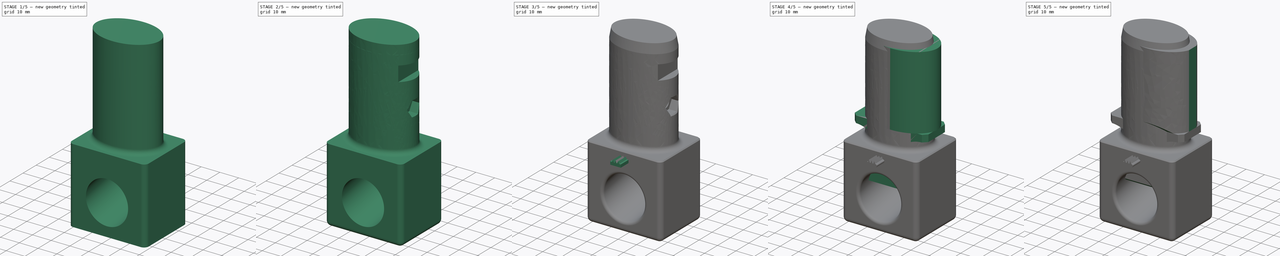
[diagram: build sequence overview — one tinted view per stage of 5, left to right]
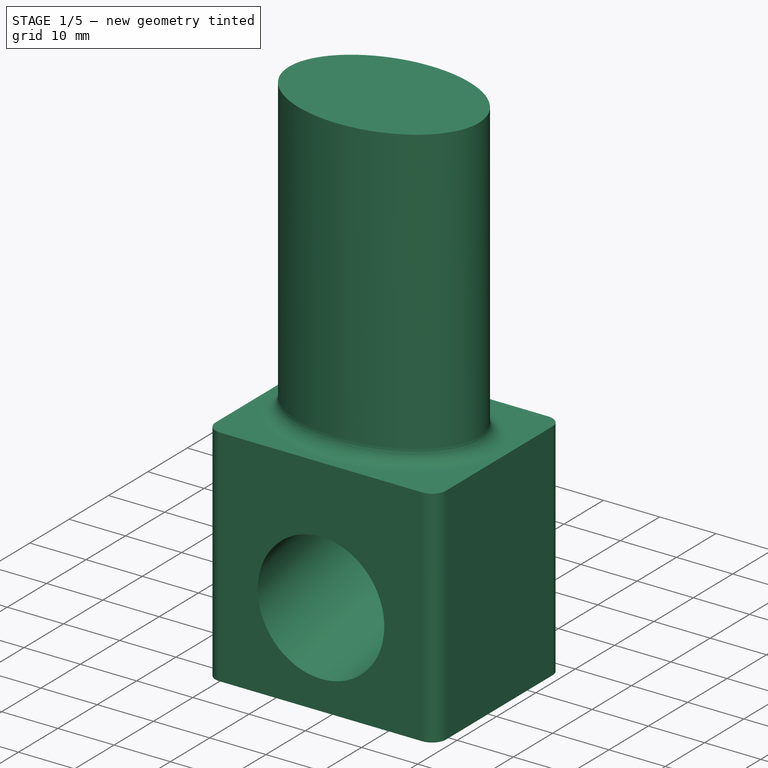
[diagram: stage 1 of 5 — iso view after this stage's code; geometry added in this stage tinted green]
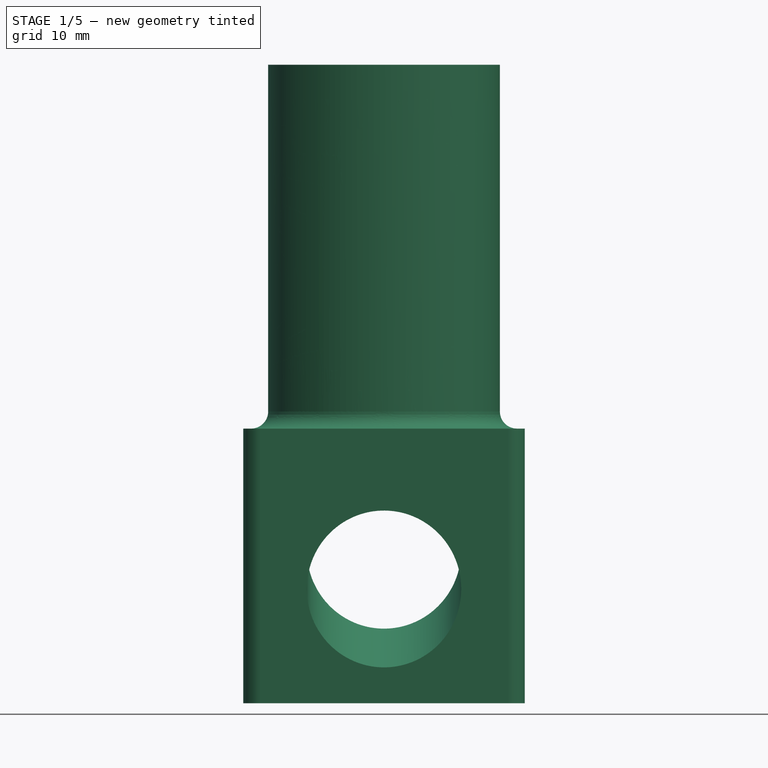
[diagram: stage 1 of 5 — front view after this stage's code; geometry added in this stage tinted green]
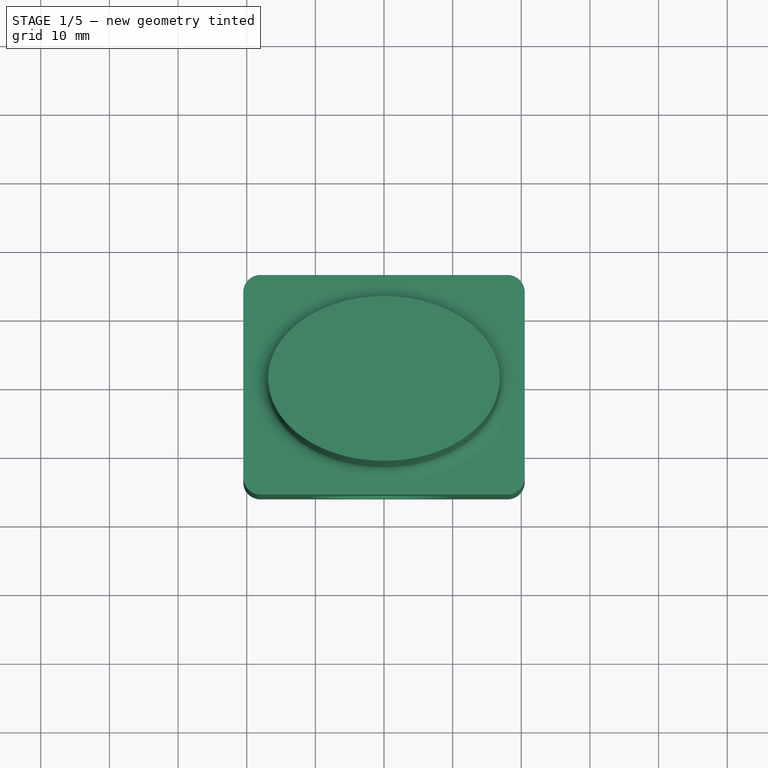
[diagram: stage 1 of 5 — top view after this stage's code; geometry added in this stage tinted green]
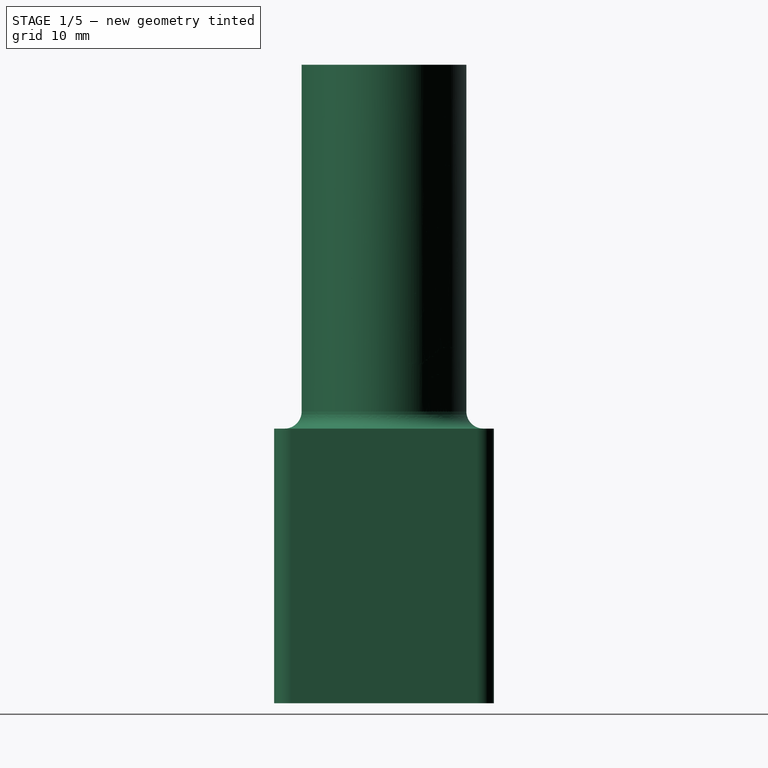
[diagram: stage 1 of 5 — right view after this stage's code; geometry added in this stage tinted green]
FCSTD DOCUMENT  (FreeCAD 2024.408R14555 (Git shallow))
Label: radiator mount
License: All rights reserved
LicenseURL: https://en.wikipedia.org/wiki/All_rights_reserved
objects: Sketcher::SketchObject×16, PartDesign::Pocket×9, PartDesign::Pad×6, PartDesign::Chamfer×4, PartDesign::Body×3, PartDesign::Fillet×3, PartDesign::Solid×2, PartDesign::Groove×1, PartDesign::Mirrored×1, PartDesign::Split×1
note: 111 computed .brp shape members not serialized (recipe doc carries the construction recipe); baked Part::Feature solids carry a one-line shape summary decoded from their .brp

FEATURE [PartDesign::Body] Body  label="mount 1"
  AutoGroupSolids = false
  ClaimAllChildren = false
  ExportMode = 0
  FixShape = 1
  Group = -> [Sketch,Pad,Sketch001,Groove,Sketch002,Pocket,Sketch003,Pad001,Sketch004,Pocket001,Sketch005,Pocket002,Sketch006,Pocket003,Mirrored,Chamfer]
  InvalidShape = false
  Origin = -> Origin
  Tip = -> Chamfer
  TreeRank = 12
  ValidateShape = false
  _ExportChildren = -> [Pad,Groove,Pocket,Pad001,Pocket001,Pocket002,Pocket003,Mirrored,Chamfer]
  _GroupVersion = 1
FEATURE [Sketcher::SketchObject] Sketch007
  ArcFitTolerance = 1e-06
  AttachmentSupport = -> [XY_Plane001]
  ExternalBSplineMaxDegree = 5
  ExternalBSplineTolerance = 0.0001
  FixShape = 1
  FullyConstrained = false
  InternalTolerance = 1e-06
  InvalidShape = false
  MakeInternals = false
  MapMode = 5
  Support = -> [XY_Plane001]
  TreeRank = 41
  ValidateShape = false
  sketch-geometry (5):
    g0: Ellipse CenterX=0 CenterY=0 CenterZ=0 NormalX=0 NormalY=0 NormalZ=1 MajorRadius=16.875 MinorRadius=12 AngleXU=-3.14159
    g1: LineSegment [constr] StartX=-16.875 StartY=-5.7e-15 StartZ=0 EndX=16.875 EndY=5.7e-15 EndZ=0
    g2: LineSegment [constr] StartX=4.1e-15 StartY=-12 StartZ=0 EndX=-4.1e-15 EndY=12 EndZ=0
    g3: GeomPoint [constr] X=-11.8645 Y=-4e-15 Z=0
    g4: GeomPoint [constr] X=11.8645 Y=4e-15 Z=0
  constraints (4):
    c: InternalAlignment(g1-g4 -> g0) x4
    c: Coincident(g0,g-1)
    c: DistanceX(g1,g1) = 33.75
    c: DistanceY(g2,g2) = 24
FEATURE [PartDesign::Pad] Pad002
  AddSubType = 0
  AlongSketchNormal = false
  AutoTaperInnerAngle = true
  CheckUpToFaceLimits = true
  ClaimChildren = false
  Direction = (0,0,1)
  Fit = 0
  FitJoin = 0
  FixShape = 1
  InnerFit = 0
  InnerFitJoin = 0
  InvalidShape = false
  Length = 58
  Length2 = 35
  Linearize = true
  NewSolid = false
  Profile = -> Sketch007
  ReferenceAxis = -> Sketch007 [N_Axis]
  Refine = true
  Suppress = false
  TaperInnerAngle = 0
  TaperInnerAngleRev = 0
  TreeRank = 42
  Type = 4
  ValidateShape = false
  _ProfileBasedVersion = 1
FEATURE [Sketcher::SketchObject] Sketch008
  ArcFitTolerance = 1e-06
  AttachmentOffset = pos=(0,0,0) rot=(1,0,0;0.174533rad)
  AttachmentSupport = -> [XZ_Plane001]
  ExternalBSplineMaxDegree = 5
  ExternalBSplineTolerance = 0.0001
  ExternalGeometry = -> [Pad002]
  FixShape = 1
  FullyConstrained = false
  InternalTolerance = 1e-06
  InvalidShape = false
  MakeInternals = false
  MapMode = 5
  Placement = pos=(0,0,0) rot=(1,0,0;1.74533rad)
  Support = -> [XZ_Plane001]
  TreeRank = 43
  ValidateShape = false
  sketch-geometry (2):
    g0: Circle CenterX=0 CenterY=-15.3022 CenterZ=0 NormalX=0 NormalY=0 NormalZ=1 AngleXU=0 Radius=11.25
    g1: LineSegment [constr] StartX=-0.0585861 StartY=-26.552 StartZ=0 EndX=-0.0585861 EndY=-36.552 EndZ=0
  constraints (6):
    c: PointOnObject(g0,g-2)
    c: Diameter(g0) = 22.5
    c: PointOnObject(g1,g0)
    c: Vertical(g1)
    c: PointOnObject(g1,g-3)
    c: DistanceY(g1,g1) = 10
FEATURE [Sketcher::SketchObject] Sketch012
  ArcFitTolerance = 1e-06
  AttachmentSupport = -> [Pad002]
  ExternalBSplineMaxDegree = 5
  ExternalBSplineTolerance = 0.0001
  ExternalGeometry = -> [Pad002]
  FixShape = 1
  FullyConstrained = true
  InternalTolerance = 1e-06
  InvalidShape = false
  MakeInternals = false
  MapMode = 5
  Placement = pos=(0,0,-35) rot=(1,0,0;3.14159rad)
  Support = -> [Pad002]
  TreeRank = 52
  ValidateShape = false
  sketch-geometry (10):
    g0: ArcOfCircle CenterX=18 CenterY=13.5 CenterZ=0 NormalX=0 NormalY=0 NormalZ=1 AngleXU=0 Radius=2.5 StartAngle=3e-16 EndAngle=1.5708
    g1: LineSegment StartX=20.5 StartY=13.5 StartZ=0 EndX=20.5 EndY=-13.5 EndZ=0
    g2: ArcOfCircle CenterX=18 CenterY=-13.5 CenterZ=0 NormalX=0 NormalY=0 NormalZ=1 AngleXU=0 Radius=2.5 StartAngle=4.71239 EndAngle=6.28319
    g3: LineSegment StartX=18 StartY=-16 StartZ=0 EndX=-18 EndY=-16 EndZ=0
    g4: ArcOfCircle CenterX=-18 CenterY=-13.5 CenterZ=0 NormalX=0 NormalY=0 NormalZ=1 AngleXU=0 Radius=2.5 StartAngle=3.14159 EndAngle=4.71239
    g5: LineSegment StartX=-20.5 StartY=-13.5 StartZ=0 EndX=-20.5 EndY=13.5 EndZ=0
    g6: ArcOfCircle CenterX=-18 CenterY=13.5 CenterZ=0 NormalX=0 NormalY=0 NormalZ=1 AngleXU=0 Radius=2.5 StartAngle=1.5708 EndAngle=3.14159
    g7: LineSegment StartX=-18 StartY=16 StartZ=0 EndX=18 EndY=16 EndZ=0
    g8: GeomPoint [constr] X=20.5 Y=16 Z=0
    g9: GeomPoint [constr] X=-20.5 Y=-16 Z=0
  constraints (23):
    c: Tangent(g0,g1) = 1.5708
    c: Tangent(g1,g2) = 1.5708
    c: Tangent(g2,g3) = 1.5708
    c: Tangent(g3,g4) = 1.5708
    c: Tangent(g4,g5) = 1.5708
    c: Tangent(g5,g6) = 1.5708
    c: Tangent(g6,g7) = 1.5708
    c: Tangent(g7,g0) = 1.5708
    c: Horizontal(g7)
    c: Vertical(g1)
    c: Vertical(g5)
    c: Equal(g0,g2)
    c: Equal(g2,g4)
    c: Equal(g4,g6)
    c: PointOnObject(g8,g1)
    c: PointOnObject(g8,g7)
    c: PointOnObject(g9,g3)
    c: PointOnObject(g9,g5)
    c: Radius(g6) = 2.5
    c: Horizontal(g3)
    c: Symmetric(g4,g0,g-3)
    c: DistanceY(g3,g6) = 32
    c: DistanceX(g4,g1) = 41
FEATURE [PartDesign::Pad] Pad003
  AddSubType = 0
  AlongSketchNormal = false
  AutoTaperInnerAngle = true
  BaseFeature = -> Pad002
  CheckUpToFaceLimits = true
  ClaimChildren = false
  Direction = (0,0,-1)
  Fit = 0
  FitJoin = 0
  FixShape = 1
  InnerFit = 0
  InnerFitJoin = 0
  InvalidShape = false
  Length = 40
  Length2 = 10
  Linearize = true
  NewSolid = false
  Profile = -> Sketch012
  ReferenceAxis = -> Sketch012 [N_Axis]
  Refine = true
  Reversed = true
  Suppress = false
  TaperInnerAngle = 0
  TaperInnerAngleRev = 0
  TreeRank = 53
  Type = 0
  ValidateShape = false
  _ProfileBasedVersion = 1
FEATURE [PartDesign::Pocket] Pocket004
  AddSubType = 1
  AlongSketchNormal = false
  AutoTaperInnerAngle = true
  BaseFeature = -> Pad003
  CheckUpToFaceLimits = true
  ClaimChildren = false
  Direction = (0,0.984808,0.173648)
  Fit = 0
  FitJoin = 0
  FixShape = 1
  InnerFit = 0
  InnerFitJoin = 0
  InvalidShape = false
  Length = 5
  Length2 = 10
  Linearize = true
  Midplane = true
  NewSolid = false
  Profile = -> Sketch008
  ReferenceAxis = -> Sketch008 [N_Axis]
  Refine = true
  Suppress = false
  TaperInnerAngle = 0
  TaperInnerAngleRev = 0
  TreeRank = 44
  Type = 1
  ValidateShape = false
  _ProfileBasedVersion = 1
  _Version = 1
FEATURE [PartDesign::Body] Body001  label="mount 2"
  AutoGroupSolids = false
  ClaimAllChildren = false
  ExportMode = 0
  FixShape = 1
  Group = -> [Sketch007,Pad002,Sketch008,Sketch012,Pad003,Pocket004,Fillet,Sketch009,Pocket005,Sketch010,Pocket006,Sketch011,Pocket007,Sketch013,Pocket008,Chamfer001,Fillet001,Fillet002,Chamfer003,Split,Split_i0,Split_i1]
  InvalidShape = false
  Origin = -> Origin001
  Tip = -> Split
  TreeRank = 40
  ValidateShape = false
  _ExportChildren = -> [Pad002,Pad003,Pocket004,Fillet,Pocket005,Pocket006,Pocket007,Pocket008,Chamfer001,Fillet001,Fillet002,Chamfer003,Split]
  _GroupVersion = 1
FEATURE [PartDesign::Split] Split
  BaseFeature = -> Chamfer003
  FixShape = 1
  Fragment = false
  InvalidShape = false
  Mode = 0
  NewSolid = false
  Solids = -> [Split_i0,Split_i1]
  Suppress = false
  Tolerance = 0
  Tools = -> [YZ_Plane001]
  TreeRank = 70
  ValidateShape = false
  _Version = 1
FEATURE [PartDesign::Solid] Split_i0
  Active = true
  FixShape = 1
  InvalidShape = false
  Parent = -> Split
  TreeRank = 71
  ValidateShape = false
FEATURE [PartDesign::Solid] Split_i1
  Active = true
  FixShape = 1
  InvalidShape = false
  Parent = -> Split
  TreeRank = 72
  ValidateShape = false
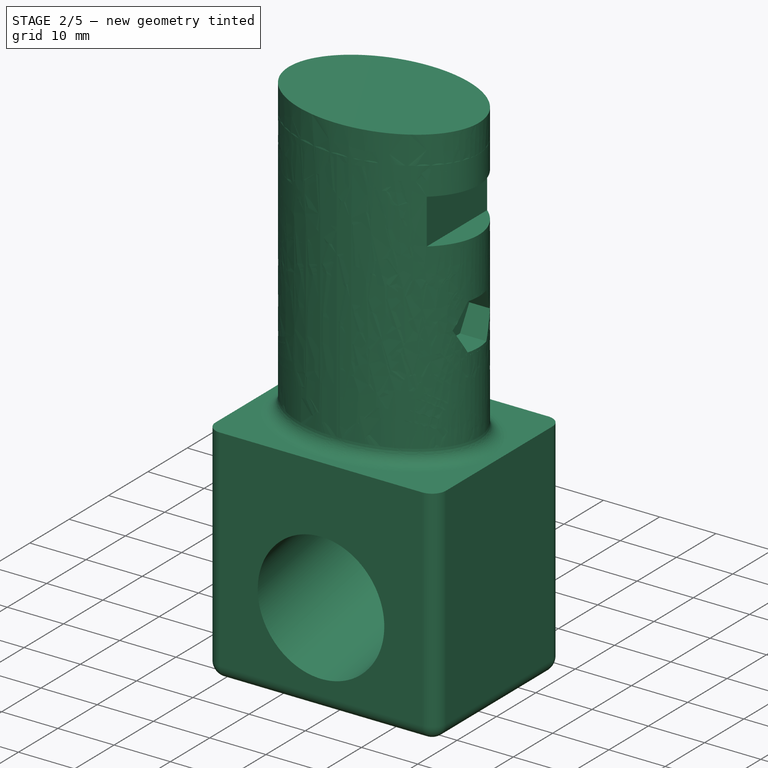
[diagram: stage 2 of 5 — iso view after this stage's code; geometry added in this stage tinted green]
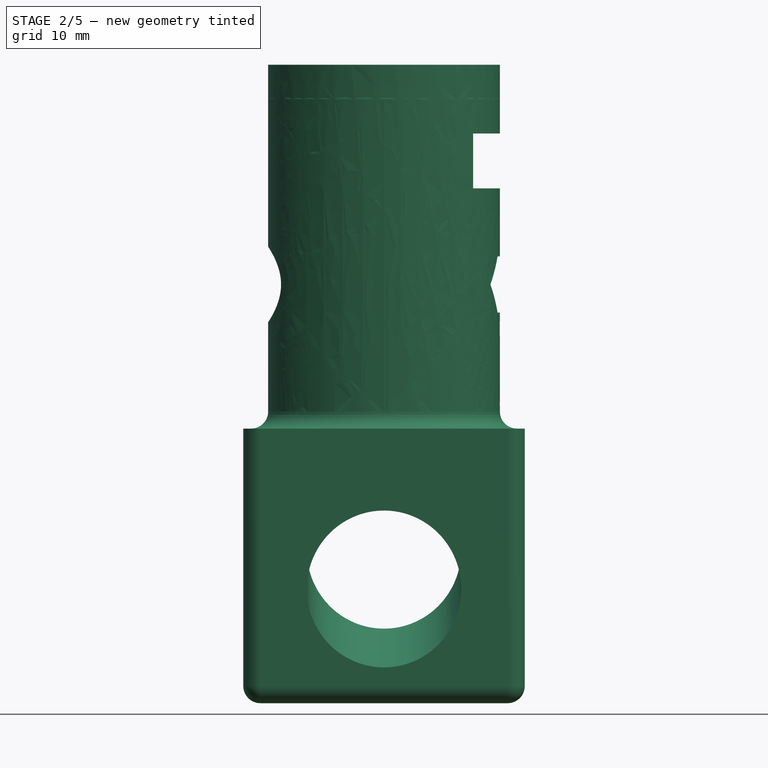
[diagram: stage 2 of 5 — front view after this stage's code; geometry added in this stage tinted green]
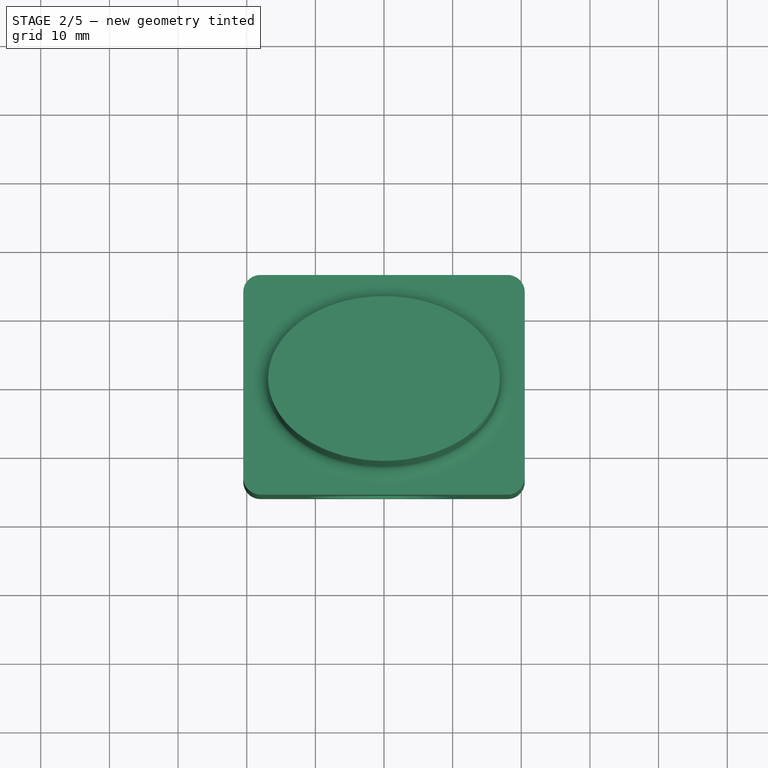
[diagram: stage 2 of 5 — top view after this stage's code; geometry added in this stage tinted green]
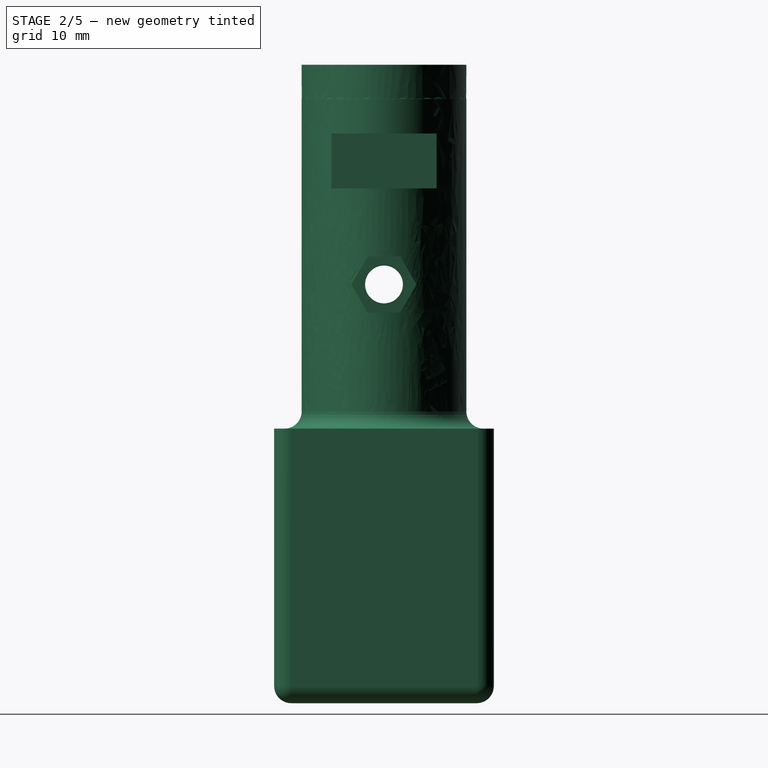
[diagram: stage 2 of 5 — right view after this stage's code; geometry added in this stage tinted green]
FEATURE [PartDesign::Fillet] Fillet
  AddSubType = 0
  Base = -> Pocket004 [Face4]
  BaseFeature = -> Pocket004
  FixShape = 1
  InvalidShape = false
  NewSolid = false
  Radius = 2.5
  Refine = true
  SupportTransform = false
  Suppress = false
  TreeRank = 45
  UseAllEdges = false
  ValidateShape = false
FEATURE [Sketcher::SketchObject] Sketch009
  ArcFitTolerance = 1e-06
  AttachmentSupport = -> [XZ_Plane001]
  ExternalBSplineMaxDegree = 5
  ExternalBSplineTolerance = 0.0001
  ExternalGeometry = -> [Fillet]
  FixShape = 1
  FullyConstrained = true
  InternalTolerance = 1e-06
  InvalidShape = false
  MakeInternals = false
  MapMode = 5
  Placement = pos=(0,0,0) rot=(1,0,0;1.5708rad)
  Support = -> [XZ_Plane001]
  TreeRank = 46
  ValidateShape = false
  sketch-geometry (4):
    g0: LineSegment StartX=12.975 StartY=48 StartZ=0 EndX=16.975 EndY=48 EndZ=0
    g1: LineSegment StartX=16.975 StartY=48 StartZ=0 EndX=16.975 EndY=40 EndZ=0
    g2: LineSegment StartX=16.975 StartY=40 StartZ=0 EndX=12.975 EndY=40 EndZ=0
    g3: LineSegment StartX=12.975 StartY=40 StartZ=0 EndX=12.975 EndY=48 EndZ=0
  constraints (12):
    c: Coincident(g0,g1)
    c: Coincident(g1,g2)
    c: Coincident(g2,g3)
    c: Coincident(g3,g0)
    c: Horizontal(g0)
    c: Horizontal(g2)
    c: Vertical(g1)
    c: Vertical(g3)
    c: DistanceY(g3,g3) = 8
    c: DistanceX(g0,g0) = 4
    c: DistanceY(g0,g-3) = 10
    c: DistanceX(g-3,g0) = 0.1
FEATURE [PartDesign::Pocket] Pocket005
  AddSubType = 1
  AlongSketchNormal = false
  AutoTaperInnerAngle = true
  BaseFeature = -> Fillet
  CheckUpToFaceLimits = true
  ClaimChildren = false
  Direction = (0,1,2e-16)
  Fit = 0
  FitJoin = 0
  FixShape = 1
  InnerFit = 0
  InnerFitJoin = 0
  InvalidShape = false
  Length = 5
  Length2 = 10
  Linearize = true
  Midplane = true
  NewSolid = false
  Profile = -> Sketch009
  ReferenceAxis = -> Sketch009 [N_Axis]
  Refine = true
  Suppress = false
  TaperInnerAngle = 0
  TaperInnerAngleRev = 0
  TreeRank = 47
  Type = 1
  ValidateShape = false
  _ProfileBasedVersion = 1
  _Version = 1
FEATURE [Sketcher::SketchObject] Sketch010
  ArcFitTolerance = 1e-06
  AttachmentSupport = -> [YZ_Plane001]
  ExternalBSplineMaxDegree = 5
  ExternalBSplineTolerance = 0.0001
  ExternalGeometry = -> [Sketch009]
  FixShape = 1
  FullyConstrained = true
  InternalTolerance = 1e-06
  InvalidShape = false
  MakeInternals = false
  MapMode = 5
  Placement = pos=(0,0,0) rot=(0.57735,0.57735,0.57735;2.0944rad)
  Support = -> [YZ_Plane001]
  TreeRank = 48
  ValidateShape = false
  sketch-geometry (1):
    g0: Circle CenterX=0 CenterY=26 CenterZ=0 NormalX=0 NormalY=0 NormalZ=1 AngleXU=0 Radius=2.75
  constraints (3):
    c: PointOnObject(g0,g-2)
    c: Diameter(g0) = 5.5
    c: DistanceY(g0,g-3) = 14
FEATURE [PartDesign::Pocket] Pocket006
  AddSubType = 1
  AlongSketchNormal = false
  AutoTaperInnerAngle = true
  BaseFeature = -> Pocket005
  CheckUpToFaceLimits = true
  ClaimChildren = false
  Direction = (-1,2e-16,-3e-16)
  Fit = 0
  FitJoin = 0
  FixShape = 1
  InnerFit = 0
  InnerFitJoin = 0
  InvalidShape = false
  Length = 5
  Length2 = 10
  Linearize = true
  Midplane = true
  NewSolid = false
  Profile = -> Sketch010
  ReferenceAxis = -> Sketch010 [N_Axis]
  Refine = true
  Suppress = false
  TaperInnerAngle = 0
  TaperInnerAngleRev = 0
  TreeRank = 49
  Type = 1
  ValidateShape = false
  _ProfileBasedVersion = 1
  _Version = 1
FEATURE [Sketcher::SketchObject] Sketch011
  ArcFitTolerance = 1e-06
  AttachmentSupport = -> [Pocket006,YZ_Plane001]
  ExternalBSplineMaxDegree = 5
  ExternalBSplineTolerance = 0.0001
  ExternalGeometry = -> [Pocket006]
  FixShape = 1
  FullyConstrained = true
  InternalTolerance = 1e-06
  InvalidShape = false
  MakeInternals = false
  MapMode = 6
  Placement = pos=(-16.875,-6e-15,28.75) rot=(0,1,0;1.5708rad)
  Support = -> [Pocket006,YZ_Plane001]
  TreeRank = 50
  ValidateShape = false
  sketch-geometry (1):
    g0: Circle CenterX=2.75 CenterY=0 CenterZ=0 NormalX=0 NormalY=0 NormalZ=1 AngleXU=0 Radius=5.5
  constraints (2):
    c: Coincident(g0,g-3)
    c: Diameter(g0) = 11
FEATURE [PartDesign::Pocket] Pocket007
  AddSubType = 1
  AlongSketchNormal = false
  AutoTaperInnerAngle = true
  BaseFeature = -> Pocket006
  CheckUpToFaceLimits = true
  ClaimChildren = false
  Direction = (-1,1e-16,-2e-16)
  Fit = 0
  FitJoin = 0
  FixShape = 1
  InnerFit = 0
  InnerFitJoin = 0
  InvalidShape = false
  Length = 3
  Length2 = 10
  Linearize = true
  NewSolid = false
  Profile = -> Sketch011
  ReferenceAxis = -> Sketch011 [N_Axis]
  Refine = true
  Reversed = true
  Suppress = false
  TaperInnerAngle = 0
  TaperInnerAngleRev = 0
  TreeRank = 51
  Type = 0
  ValidateShape = false
  _ProfileBasedVersion = 1
  _Version = 1
FEATURE [Sketcher::SketchObject] Sketch013
  ArcFitTolerance = 1e-06
  AttachmentSupport = -> [Pocket007,YZ_Plane001]
  ExternalBSplineMaxDegree = 5
  ExternalBSplineTolerance = 0.0001
  ExternalGeometry = -> [Sketch010]
  FixShape = 1
  FullyConstrained = true
  InternalTolerance = 1e-06
  InvalidShape = false
  MakeInternals = false
  MapMode = 6
  Placement = pos=(16.855,0.58458,28.6871) rot=(0,-1,0;1.5708rad)
  Support = -> [Pocket007,YZ_Plane001]
  TreeRank = 54
  ValidateShape = false
  sketch-geometry (7):
    g0: LineSegment StartX=-6.78715 StartY=-2.95172 StartZ=0 EndX=-2.68715 EndY=-5.31885 EndZ=0
    g1: LineSegment StartX=-2.68715 StartY=-5.31885 StartZ=0 EndX=1.41285 EndY=-2.95172 EndZ=0
    g2: LineSegment StartX=1.41285 StartY=-2.95172 StartZ=0 EndX=1.41285 EndY=1.78256 EndZ=0
    g3: LineSegment StartX=1.41285 StartY=1.78256 StartZ=0 EndX=-2.68715 EndY=4.14969 EndZ=0
    g4: LineSegment StartX=-2.68715 StartY=4.14969 StartZ=0 EndX=-6.78715 EndY=1.78256 EndZ=0
    g5: LineSegment StartX=-6.78715 StartY=1.78256 StartZ=0 EndX=-6.78715 EndY=-2.95172 EndZ=0
    g6: Circle [constr] CenterX=-2.68715 CenterY=-0.58458 CenterZ=0 NormalX=0 NormalY=0 NormalZ=1 AngleXU=0 Radius=4.73427
  constraints (16):
    c: Coincident(g0,g1)
    c: Coincident(g1,g2)
    c: Coincident(g2,g3)
    c: Coincident(g3,g4)
    c: Coincident(g4,g5)
    c: Coincident(g5,g0)
    c: Equal(g0, g1-g5) x5
    c: PointOnObject(g0,g6)
    c: PointOnObject(g1,g6)
    c: PointOnObject(g2,g6)
    c: PointOnObject(g3,g6)
    c: PointOnObject(g4,g6)
    c: PointOnObject(g5,g6)
    c: Coincident(g6,g-3)
    c: Vertical(g2)
    c: DistanceX(g0,g1) = 8.2
FEATURE [PartDesign::Pocket] Pocket008
  AddSubType = 1
  AlongSketchNormal = false
  AutoTaperInnerAngle = true
  BaseFeature = -> Pocket007
  CheckUpToFaceLimits = true
  ClaimChildren = false
  Direction = (1,-1e-16,2e-16)
  Fit = 0
  FitJoin = 0
  FixShape = 1
  InnerFit = 0
  InnerFitJoin = 0
  InvalidShape = false
  Length = 5
  Length2 = 1
  Linearize = true
  NewSolid = false
  Profile = -> Sketch013
  ReferenceAxis = -> Sketch013 [N_Axis]
  Refine = true
  Reversed = true
  Suppress = false
  TaperInnerAngle = 0
  TaperInnerAngleRev = 0
  TreeRank = 55
  Type = 4
  ValidateShape = false
  _ProfileBasedVersion = 1
  _Version = 1
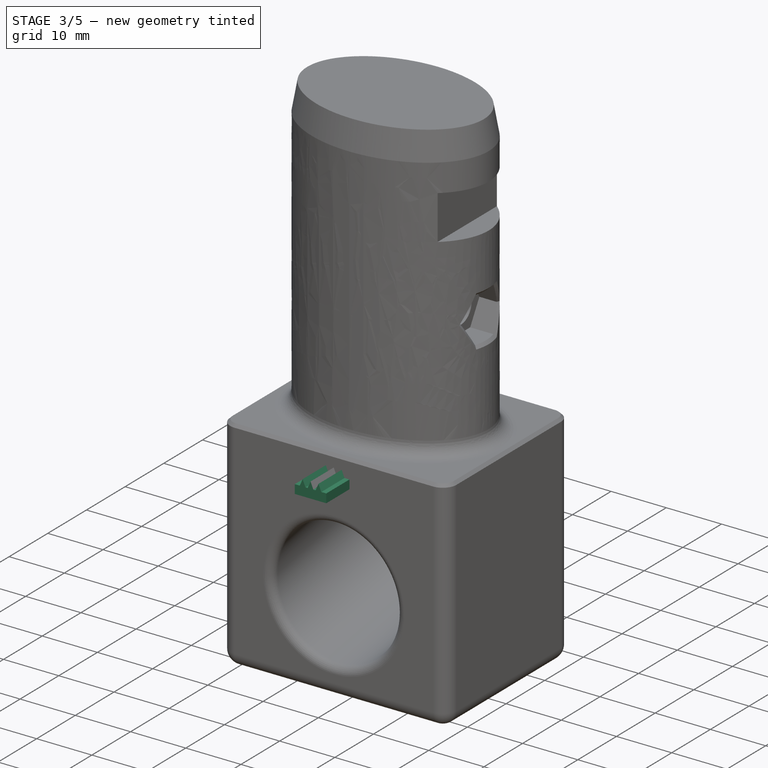
[diagram: stage 3 of 5 — iso view after this stage's code; geometry added in this stage tinted green]
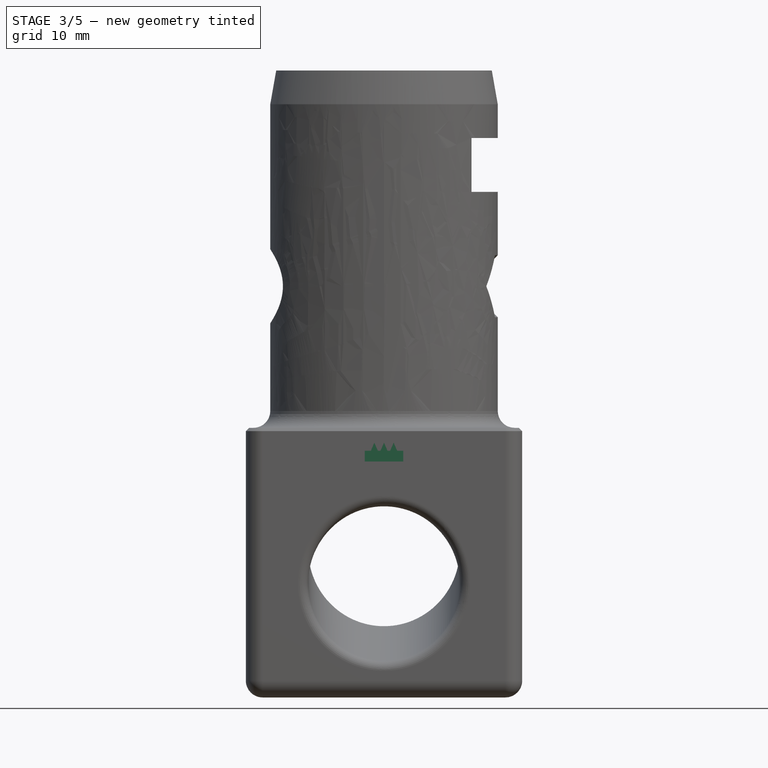
[diagram: stage 3 of 5 — front view after this stage's code; geometry added in this stage tinted green]
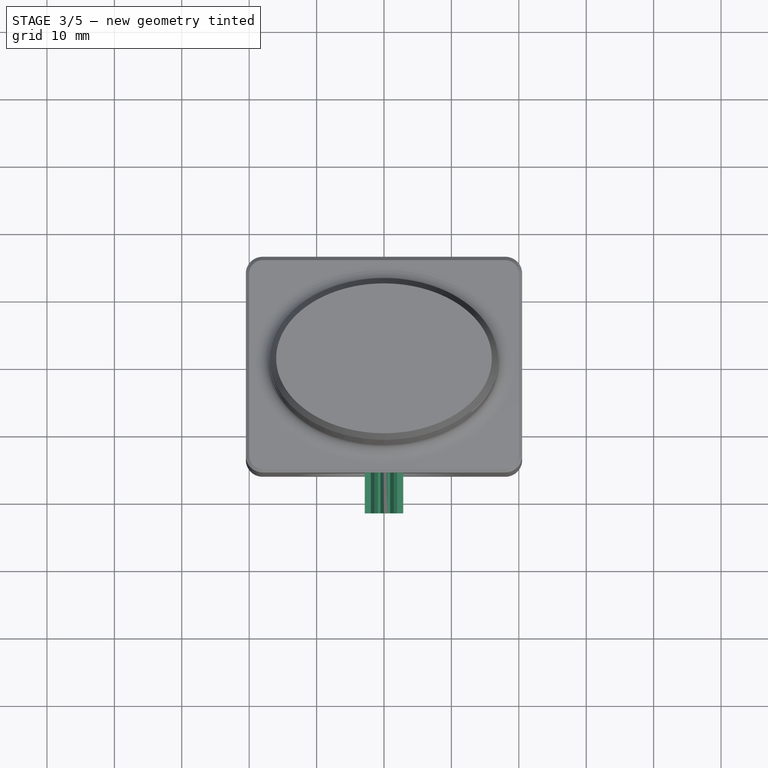
[diagram: stage 3 of 5 — top view after this stage's code; geometry added in this stage tinted green]
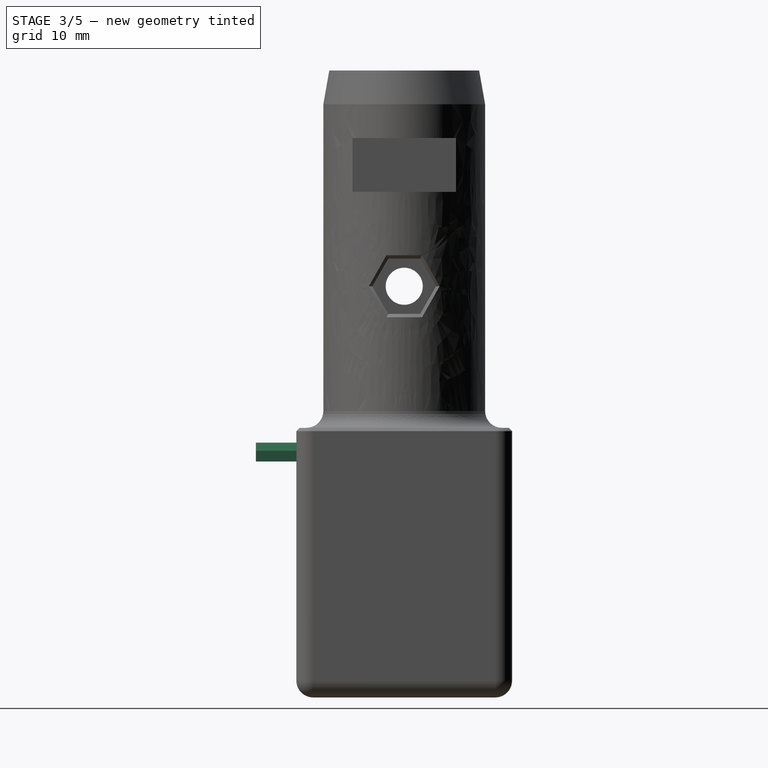
[diagram: stage 3 of 5 — right view after this stage's code; geometry added in this stage tinted green]
FEATURE [PartDesign::Chamfer] Chamfer001
  AddSubType = 0
  Angle = 45
  Base = -> Pocket008 [Edge14,Edge47,Edge46,Edge45,Edge44,Edge48,Edge49]
  BaseFeature = -> Pocket008
  ChamferType = 0
  FixShape = 1
  FlipDirection = false
  InvalidShape = false
  NewSolid = false
  Refine = true
  Size = 0.5
  Size2 = 1
  SupportTransform = false
  Suppress = false
  TreeRank = 56
  UseAllEdges = false
  ValidateShape = false
FEATURE [PartDesign::Fillet] Fillet001
  AddSubType = 0
  Base = -> Chamfer001 [Edge39,Edge17]
  BaseFeature = -> Chamfer001
  FixShape = 1
  InvalidShape = false
  NewSolid = false
  Radius = 1.5
  Refine = true
  SupportTransform = false
  Suppress = false
  TreeRank = 57
  UseAllEdges = false
  ValidateShape = false
FEATURE [PartDesign::Fillet] Fillet002
  AddSubType = 0
  Base = -> Fillet001 [Edge35]
  BaseFeature = -> Fillet001
  FixShape = 1
  InvalidShape = false
  NewSolid = false
  Radius = 2.5
  Refine = true
  SupportTransform = false
  Suppress = false
  TreeRank = 58
  UseAllEdges = false
  ValidateShape = false
FEATURE [Sketcher::SketchObject] Sketch014
  ArcFitTolerance = 1e-06
  AttachmentSupport = -> [XZ_Plane002]
  ExternalBSplineMaxDegree = 5
  ExternalBSplineTolerance = 0.0001
  FixShape = 1
  FullyConstrained = true
  InternalTolerance = 1e-06
  InvalidShape = false
  MakeInternals = false
  MapMode = 5
  Placement = pos=(0,0,0) rot=(1,0,0;1.5708rad)
  Support = -> [XZ_Plane002]
  TreeRank = 13
  ValidateShape = false
  sketch-geometry (4):
    g0: LineSegment StartX=2.85 StartY=1.6 StartZ=0 EndX=-2.85 EndY=1.6 EndZ=0
    g1: LineSegment StartX=-2.85 StartY=1.6 StartZ=0 EndX=-2.85 EndY=0 EndZ=0
    g2: LineSegment StartX=-2.85 StartY=0 StartZ=0 EndX=2.85 EndY=0 EndZ=0
    g3: LineSegment StartX=2.85 StartY=0 StartZ=0 EndX=2.85 EndY=1.6 EndZ=0
  constraints (11):
    c: Coincident(g0,g1)
    c: Coincident(g1,g2)
    c: Coincident(g2,g3)
    c: Coincident(g3,g0)
    c: Horizontal(g0)
    c: Horizontal(g2)
    c: Vertical(g1)
    c: Vertical(g3)
    c: Symmetric(g1,g2,g-1)
    c: DistanceX(g2,g2) = 5.7
    c: DistanceY(g1,g1) = 1.6
FEATURE [PartDesign::Pad] Pad004
  AddSubType = 0
  AlongSketchNormal = false
  AutoTaperInnerAngle = true
  CheckUpToFaceLimits = true
  ClaimChildren = false
  Direction = (0,-1,-2e-16)
  Fit = 0
  FitJoin = 0
  FixShape = 1
  InnerFit = 0
  InnerFitJoin = 0
  InvalidShape = false
  Length = 22
  Length2 = 10
  Linearize = true
  NewSolid = false
  Profile = -> Sketch014
  ReferenceAxis = -> Sketch014 [N_Axis]
  Refine = true
  Suppress = false
  TaperInnerAngle = 0
  TaperInnerAngleRev = 0
  TreeRank = 14
  Type = 0
  ValidateShape = false
  _ProfileBasedVersion = 1
FEATURE [Sketcher::SketchObject] Sketch015
  ArcFitTolerance = 1e-06
  AttachmentSupport = -> [XZ_Plane002]
  ExternalBSplineMaxDegree = 5
  ExternalBSplineTolerance = 0.0001
  ExternalGeometry = -> [Pad004]
  FixShape = 1
  FullyConstrained = true
  InternalTolerance = 1e-06
  InvalidShape = false
  MakeInternals = false
  MapMode = 5
  Placement = pos=(0,0,0) rot=(1,0,0;1.5708rad)
  Support = -> [XZ_Plane002]
  TreeRank = 15
  ValidateShape = false
  sketch-geometry (11):
    g0: LineSegment StartX=0.516667 StartY=1.6 StartZ=0 EndX=0 EndY=2.8 EndZ=0
    g1: LineSegment StartX=0 StartY=2.8 StartZ=0 EndX=-0.516667 EndY=1.6 EndZ=0
    g2: LineSegment StartX=-0.916667 StartY=1.6 StartZ=0 EndX=-1.43333 EndY=2.8 EndZ=0
    g3: LineSegment StartX=-1.43333 StartY=2.8 StartZ=0 EndX=-1.95 EndY=1.6 EndZ=0
    g4: LineSegment StartX=0.916667 StartY=1.6 StartZ=0 EndX=1.43333 EndY=2.8 EndZ=0
    g5: LineSegment StartX=1.43333 StartY=2.8 StartZ=0 EndX=1.95 EndY=1.6 EndZ=0
    g6: LineSegment [constr] StartX=0.916667 StartY=1.6 StartZ=0 EndX=0.516667 EndY=1.6 EndZ=0
    g7: LineSegment [constr] StartX=-0.516667 StartY=1.6 StartZ=0 EndX=-0.916667 EndY=1.6 EndZ=0
    g8: LineSegment StartX=1.95 StartY=1.6 StartZ=0 EndX=0.916667 EndY=1.6 EndZ=0
    g9: LineSegment StartX=0.516667 StartY=1.6 StartZ=0 EndX=-0.516667 EndY=1.6 EndZ=0
    g10: LineSegment StartX=-0.916667 StartY=1.6 StartZ=0 EndX=-1.95 EndY=1.6 EndZ=0
  constraints (31):
    c: PointOnObject(g0,g-3)
    c: Coincident(g1,g0)
    c: PointOnObject(g1,g-3)
    c: PointOnObject(g2,g-3)
    c: Coincident(g3,g2)
    c: PointOnObject(g3,g-3)
    c: PointOnObject(g4,g-3)
    c: Coincident(g5,g4)
    c: PointOnObject(g5,g-3)
    c: Equal(g5,g0)
    c: Equal(g0,g2)
    c: Horizontal(g4,g0)
    c: Horizontal(g0,g2)
    c: Equal(g4,g1)
    c: Equal(g1,g3)
    c: Coincident(g6,g4)
    c: Coincident(g6,g0)
    c: Coincident(g7,g1)
    c: Coincident(g7,g2)
    c: Equal(g6,g7)
    c: Coincident(g8,g5)
    c: Coincident(g8,g4)
    c: Coincident(g9,g0)
    c: Coincident(g9,g1)
    c: Coincident(g10,g2)
    c: Coincident(g10,g3)
    c: DistanceX(g6,g6) = 0.4
    c: DistanceX(g3,g5) = 3.9
    c: DistanceY(g2,g2) = 1.2
    c: Equal(g5,g4)
    c: PointOnObject(g0,g-2)
FEATURE [PartDesign::Pad] Pad005
  AddSubType = 0
  AlongSketchNormal = false
  AutoTaperInnerAngle = true
  BaseFeature = -> Pad004
  CheckUpToFaceLimits = true
  ClaimChildren = false
  Direction = (0,-1,-2e-16)
  Fit = 0
  FitJoin = 0
  FixShape = 1
  InnerFit = 0
  InnerFitJoin = 0
  InvalidShape = false
  Length = 22
  Length2 = 10
  Linearize = true
  NewSolid = false
  Profile = -> Sketch015
  ReferenceAxis = -> Sketch015 [N_Axis]
  Refine = true
  Suppress = false
  TaperInnerAngle = 0
  TaperInnerAngleRev = 0
  TreeRank = 16
  Type = 0
  ValidateShape = false
  _ProfileBasedVersion = 1
FEATURE [PartDesign::Body] Body002  label="clip"
  AutoGroupSolids = false
  ClaimAllChildren = false
  ExportMode = 0
  FixShape = 1
  Group = -> [Sketch014,Pad004,Sketch015,Pad005,Chamfer002]
  InvalidShape = false
  Origin = -> Origin002
  Tip = -> Chamfer002
  TreeRank = 65
  ValidateShape = false
  _ExportChildren = -> [Pad004,Pad005,Chamfer002]
  _GroupVersion = 1
FEATURE [PartDesign::Chamfer] Chamfer003
  AddSubType = 0
  Angle = 10
  Base = -> Fillet002 [Edge32]
  BaseFeature = -> Fillet002
  ChamferType = 2
  FixShape = 1
  FlipDirection = false
  InvalidShape = false
  NewSolid = false
  Refine = true
  Size = 5
  Size2 = 1
  SupportTransform = false
  Suppress = false
  TreeRank = 66
  UseAllEdges = false
  ValidateShape = false
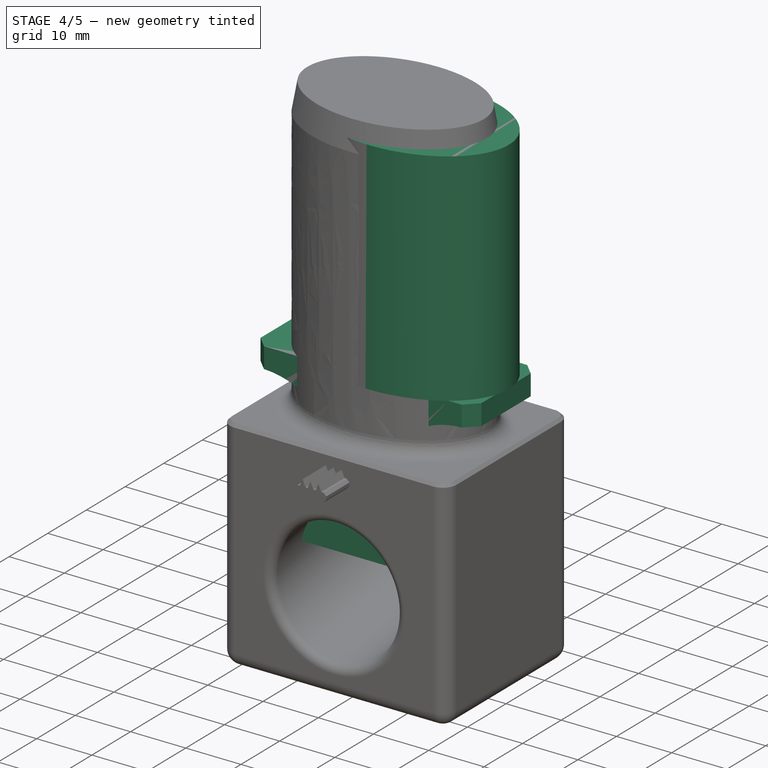
[diagram: stage 4 of 5 — iso view after this stage's code; geometry added in this stage tinted green]
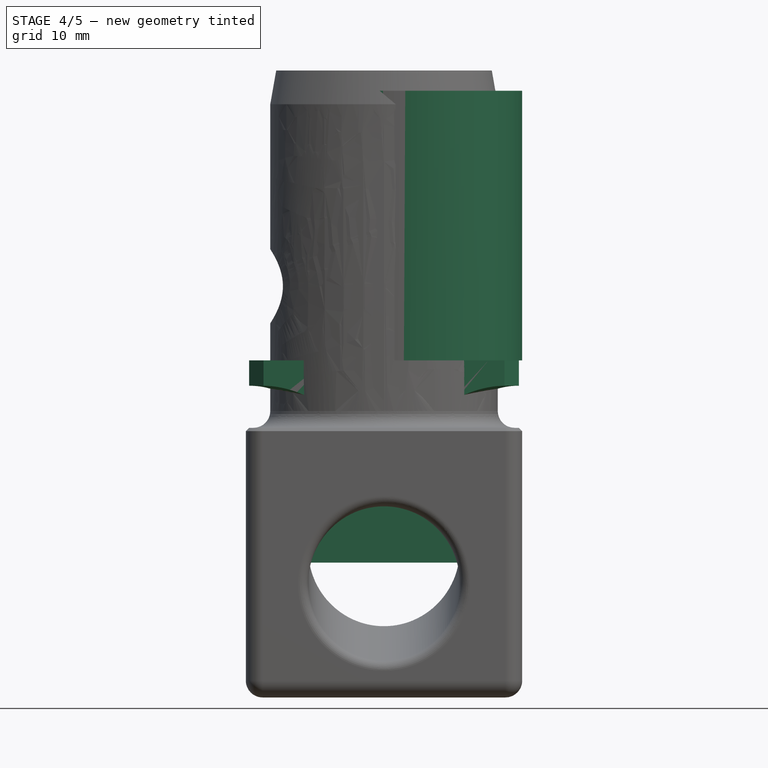
[diagram: stage 4 of 5 — front view after this stage's code; geometry added in this stage tinted green]
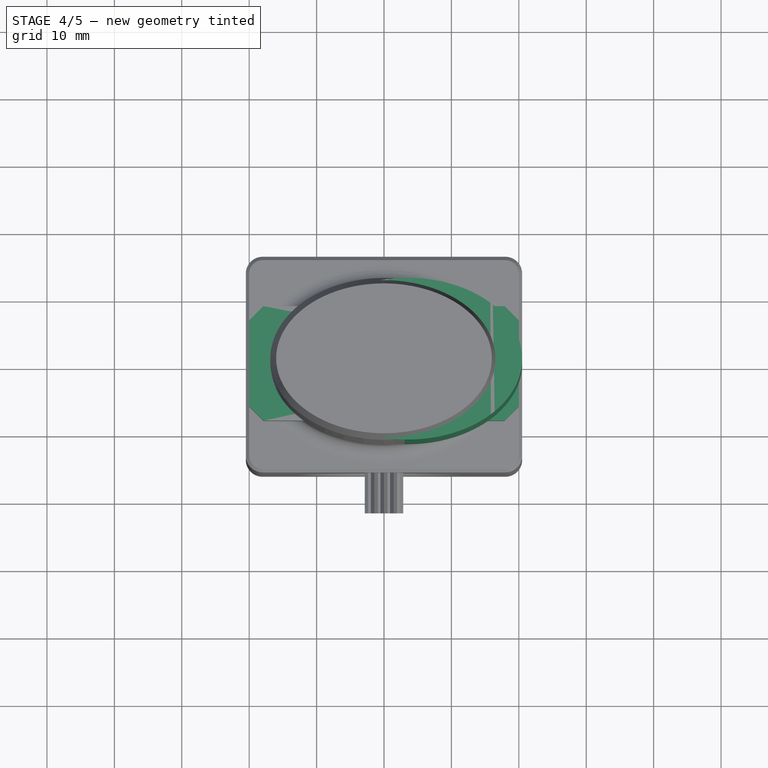
[diagram: stage 4 of 5 — top view after this stage's code; geometry added in this stage tinted green]
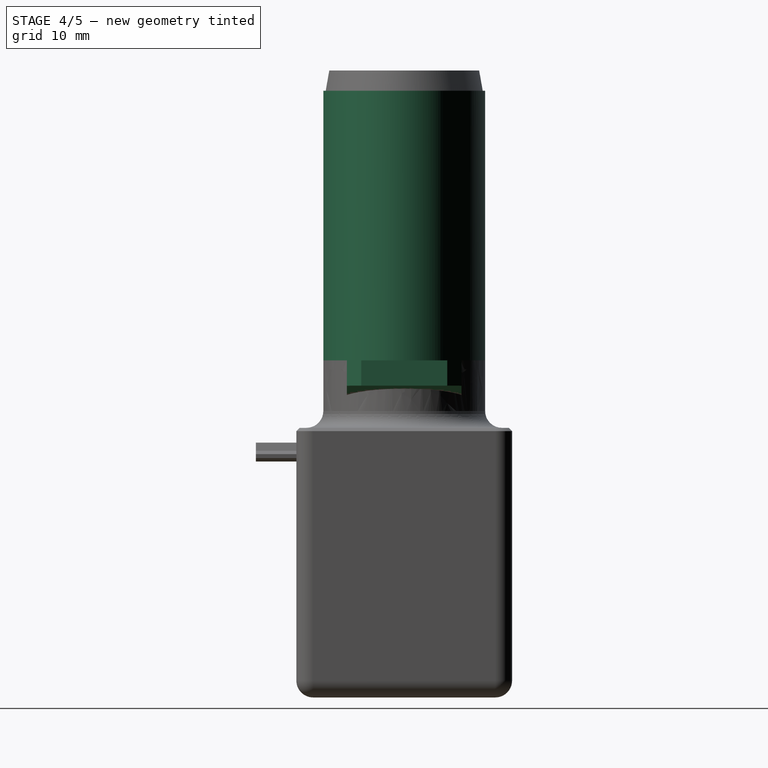
[diagram: stage 4 of 5 — right view after this stage's code; geometry added in this stage tinted green]
FEATURE [Sketcher::SketchObject] Sketch
  ArcFitTolerance = 1e-06
  AttachmentSupport = -> [XY_Plane]
  ExternalBSplineMaxDegree = 5
  ExternalBSplineTolerance = 0.0001
  FixShape = 1
  FullyConstrained = true
  InternalTolerance = 1e-06
  InvalidShape = false
  MakeInternals = false
  MapMode = 5
  Support = -> [XY_Plane]
  TreeRank = 13
  ValidateShape = false
  sketch-geometry (5):
    g0: LineSegment StartX=-20 StartY=8.5 StartZ=0 EndX=20 EndY=8.5 EndZ=0
    g1: LineSegment StartX=20 StartY=8.5 StartZ=0 EndX=20 EndY=8.5 EndZ=0
    g2: LineSegment StartX=20 StartY=8.5 StartZ=0 EndX=20 EndY=-8.5 EndZ=0
    g3: LineSegment StartX=20 StartY=-8.5 StartZ=0 EndX=-20 EndY=-8.5 EndZ=0
    g4: LineSegment StartX=-20 StartY=-8.5 StartZ=0 EndX=-20 EndY=8.5 EndZ=0
  constraints (13):
    c: Coincident(g1,g0)
    c: Coincident(g2,g1)
    c: Horizontal(g3)
    c: Vertical(g4)
    c: Symmetric(g2,g1,g-1)
    c: Symmetric(g1,g4,g-2)
    c: Horizontal(g2,g4)
    c: Symmetric(g3,g0,g-1)
    c: Symmetric(g0,g0,g-2)
    c: DistanceY(g3,g0) = 17
    c: DistanceX(g4,g2) = 40
    c: Vertical(g3,g0)
    c: Coincident(g3,g2)
FEATURE [PartDesign::Pad] Pad
  AddSubType = 0
  AlongSketchNormal = false
  AutoTaperInnerAngle = true
  CheckUpToFaceLimits = true
  ClaimChildren = false
  Direction = (0,0,1)
  Fit = 0
  FitJoin = 0
  FixShape = 1
  InnerFit = 0
  InnerFitJoin = 0
  InvalidShape = false
  Length = 30
  Length2 = 10
  Linearize = true
  Midplane = true
  NewSolid = false
  Profile = -> Sketch
  ReferenceAxis = -> Sketch [N_Axis]
  Refine = true
  Suppress = false
  TaperInnerAngle = 0
  TaperInnerAngleRev = 0
  TreeRank = 14
  Type = 0
  ValidateShape = false
  _ProfileBasedVersion = 1
FEATURE [Sketcher::SketchObject] Sketch001
  ArcFitTolerance = 1e-06
  AttachmentSupport = -> [XZ_Plane]
  ExternalBSplineMaxDegree = 5
  ExternalBSplineTolerance = 0.0001
  FixShape = 1
  FullyConstrained = true
  InternalTolerance = 1e-06
  InvalidShape = false
  MakeInternals = false
  MapMode = 5
  Placement = pos=(0,0,0) rot=(1,0,0;1.5708rad)
  Support = -> [XZ_Plane]
  TreeRank = 15
  ValidateShape = false
  expr: Constraints[15] = 17.5 / 2
  sketch-geometry (5):
    g0: ArcOfCircle CenterX=20 CenterY=0 CenterZ=0 NormalX=0 NormalY=0 NormalZ=1 AngleXU=0 Radius=11.25 StartAngle=1.5708 EndAngle=4.71239
    g1: LineSegment StartX=20 StartY=11.25 StartZ=0 EndX=42.5 EndY=11.25 EndZ=0
    g2: LineSegment StartX=42.5 StartY=11.25 StartZ=0 EndX=42.5 EndY=-11.25 EndZ=0
    g3: LineSegment StartX=42.5 StartY=-11.25 StartZ=0 EndX=20 EndY=-11.25 EndZ=0
    g4: LineSegment [constr] StartX=0 StartY=0 StartZ=0 EndX=8.75 EndY=0 EndZ=0
  constraints (16):
    c: PointOnObject(g0,g-1)
    c: Coincident(g1,g0)
    c: Horizontal(g1)
    c: Coincident(g2,g1)
    c: Vertical(g2)
    c: Coincident(g3,g2)
    c: Coincident(g3,g0)
    c: Horizontal(g3)
    c: Diameter(g0) = 22.5
    c: DistanceX(g1,g1) = 22.5
    c: Vertical(g0,g0)
    c: Vertical(g0,g0)
    c: Coincident(g4,g-1)
    c: PointOnObject(g4,g0)
    c: Horizontal(g4)
    c: DistanceX(g4,g4) = 8.75
FEATURE [PartDesign::Groove] Groove
  AddSubType = 1
  Angle = 360
  Axis = (0,2e-16,1)
  Base = (0,0,0)
  BaseFeature = -> Pad
  ClaimChildren = false
  Fit = 0
  FitJoin = 0
  FixShape = 1
  InnerFit = 0
  InnerFitJoin = 0
  InvalidShape = false
  Linearize = true
  NewSolid = false
  Profile = -> Sketch001
  ReferenceAxis = -> Sketch001 [V_Axis]
  Refine = true
  Suppress = false
  TreeRank = 16
  ValidateShape = false
  _ProfileBasedVersion = 1
FEATURE [Sketcher::SketchObject] Sketch002
  ArcFitTolerance = 1e-06
  AttachmentSupport = -> [XY_Plane]
  ExternalBSplineMaxDegree = 5
  ExternalBSplineTolerance = 0.0001
  ExternalGeometry = -> [Groove]
  FixShape = 1
  FullyConstrained = false
  InternalTolerance = 1e-06
  InvalidShape = false
  MakeInternals = false
  MapMode = 5
  Support = -> [XY_Plane]
  TreeRank = 17
  ValidateShape = false
  sketch-geometry (13):
    g0: LineSegment StartX=-20 StartY=6.37868 StartZ=0 EndX=-17.8787 EndY=8.5 EndZ=0
    g1: LineSegment StartX=-17.8787 StartY=8.5 StartZ=0 EndX=17.8787 EndY=8.5 EndZ=0
    g2: LineSegment StartX=17.8787 StartY=8.5 StartZ=0 EndX=20 EndY=6.37868 EndZ=0
    g3: LineSegment StartX=20 StartY=6.37868 StartZ=0 EndX=20 EndY=-6.37868 EndZ=0
    g4: LineSegment StartX=20 StartY=-6.37868 StartZ=0 EndX=17.8787 EndY=-8.5 EndZ=0
    g5: LineSegment StartX=17.8787 StartY=-8.5 StartZ=0 EndX=-17.8787 EndY=-8.5 EndZ=0
    g6: LineSegment StartX=-17.8787 StartY=-8.5 StartZ=0 EndX=-20 EndY=-6.37868 EndZ=0
    g7: LineSegment StartX=-20 StartY=-6.37868 StartZ=0 EndX=-20 EndY=6.37868 EndZ=0
    g8: LineSegment StartX=-35.975 StartY=18.9854 StartZ=0 EndX=-35.975 EndY=-18.9854 EndZ=0
    g9: LineSegment StartX=-35.975 StartY=-18.9854 StartZ=0 EndX=35.975 EndY=-18.9854 EndZ=0
    g10: LineSegment StartX=35.975 StartY=-18.9854 StartZ=0 EndX=35.975 EndY=18.9854 EndZ=0
    g11: LineSegment StartX=35.975 StartY=18.9854 StartZ=0 EndX=-35.975 EndY=18.9854 EndZ=0
    g12: GeomPoint [constr] X=0 Y=0 Z=0
  constraints (33):
    c: PointOnObject(g0,g-4)
    c: Coincident(g0,g1)
    c: Horizontal(g1)
    c: Coincident(g1,g2)
    c: PointOnObject(g2,g-3)
    c: Coincident(g2,g3)
    c: Coincident(g3,g4)
    c: Coincident(g4,g5)
    c: Horizontal(g5)
    c: Coincident(g5,g6)
    c: PointOnObject(g6,g-4)
    c: Coincident(g6,g7)
    c: Coincident(g7,g0)
    c: Symmetric(g2,g3,g-1)
    c: Horizontal(g0,g2)
    c: Horizontal(g6,g3)
    c: Horizontal(g4,g-3)
    c: Horizontal(g1,g-3)
    c: Equal(g2,g6)
    c: Perpendicular(g4,g2)
    c: Parallel(g4,g0)
    c: Angle(g4) = -2.35619
    c: Distance(g2) = 3
    c: Coincident(g8,g9)
    c: Coincident(g9,g10)
    c: Coincident(g10,g11)
    c: Coincident(g11,g8)
    c: Horizontal(g9)
    c: Horizontal(g11)
    c: Vertical(g8)
    c: Vertical(g10)
    c: Symmetric(g9,g8,g12)
    c: Coincident(g12,g-1)
FEATURE [PartDesign::Pocket] Pocket
  AddSubType = 1
  AlongSketchNormal = false
  AutoTaperInnerAngle = true
  BaseFeature = -> Groove
  CheckUpToFaceLimits = true
  ClaimChildren = false
  Direction = (0,0,-1)
  Fit = 0
  FitJoin = 0
  FixShape = 1
  InnerFit = 0
  InnerFitJoin = 0
  InvalidShape = false
  Length = 5
  Length2 = 10
  Linearize = true
  Midplane = true
  NewSolid = false
  Profile = -> Sketch002
  ReferenceAxis = -> Sketch002 [N_Axis]
  Refine = true
  Suppress = false
  TaperInnerAngle = 0
  TaperInnerAngleRev = 0
  TreeRank = 18
  Type = 1
  ValidateShape = false
  _ProfileBasedVersion = 1
  _Version = 1
FEATURE [Sketcher::SketchObject] Sketch003
  ArcFitTolerance = 1e-06
  AttachmentSupport = -> [Pocket]
  ExternalBSplineMaxDegree = 5
  ExternalBSplineTolerance = 0.0001
  ExternalGeometry = -> [Pocket]
  FixShape = 1
  FullyConstrained = false
  InternalTolerance = 1e-06
  InvalidShape = false
  MakeInternals = false
  MapMode = 5
  Placement = pos=(0,0,15) rot=(0,0,1;0rad)
  Support = -> [Pocket]
  TreeRank = 19
  ValidateShape = false
  sketch-geometry (5):
    g0: Ellipse CenterX=3.5 CenterY=0 CenterZ=0 NormalX=0 NormalY=0 NormalZ=1 MajorRadius=17 MinorRadius=12 AngleXU=0
    g1: LineSegment [constr] StartX=20.5 StartY=0 StartZ=0 EndX=-13.5 EndY=0 EndZ=0
    g2: LineSegment [constr] StartX=3.5 StartY=12 StartZ=0 EndX=3.5 EndY=-12 EndZ=0
    g3: GeomPoint [constr] X=15.5416 Y=0 Z=0
    g4: GeomPoint [constr] X=-8.54159 Y=0 Z=0
  constraints (5):
    c: InternalAlignment(g1-g4 -> g0) x4
    c: PointOnObject(g0,g-1)
    c: DistanceX(g1,g1) = 34
    c: DistanceY(g2,g2) = 24
    c: DistanceX(g-3,g1) = 0.5
FEATURE [PartDesign::Pad] Pad001
  AddSubType = 0
  AlongSketchNormal = false
  AutoTaperInnerAngle = true
  BaseFeature = -> Pocket
  CheckUpToFaceLimits = true
  ClaimChildren = false
  Direction = (0,0,1)
  Fit = 0
  FitJoin = 0
  FixShape = 1
  InnerFit = 0
  InnerFitJoin = 0
  InvalidShape = false
  Length = 40
  Length2 = 10
  Linearize = true
  NewSolid = false
  Profile = -> Sketch003
  ReferenceAxis = -> Sketch003 [N_Axis]
  Refine = true
  Suppress = false
  TaperInnerAngle = 0
  TaperInnerAngleRev = 0
  TreeRank = 20
  Type = 0
  ValidateShape = false
  _ProfileBasedVersion = 1
FEATURE [PartDesign::Chamfer] Chamfer002
  AddSubType = 0
  Angle = 45
  Base = -> Pad005 [Edge9,Edge12,Edge15,Edge21]
  BaseFeature = -> Pad005
  ChamferType = 0
  FixShape = 1
  FlipDirection = false
  InvalidShape = false
  NewSolid = false
  Refine = true
  Size = 0.5
  Size2 = 1
  SupportTransform = false
  Suppress = false
  TreeRank = 17
  UseAllEdges = false
  ValidateShape = false
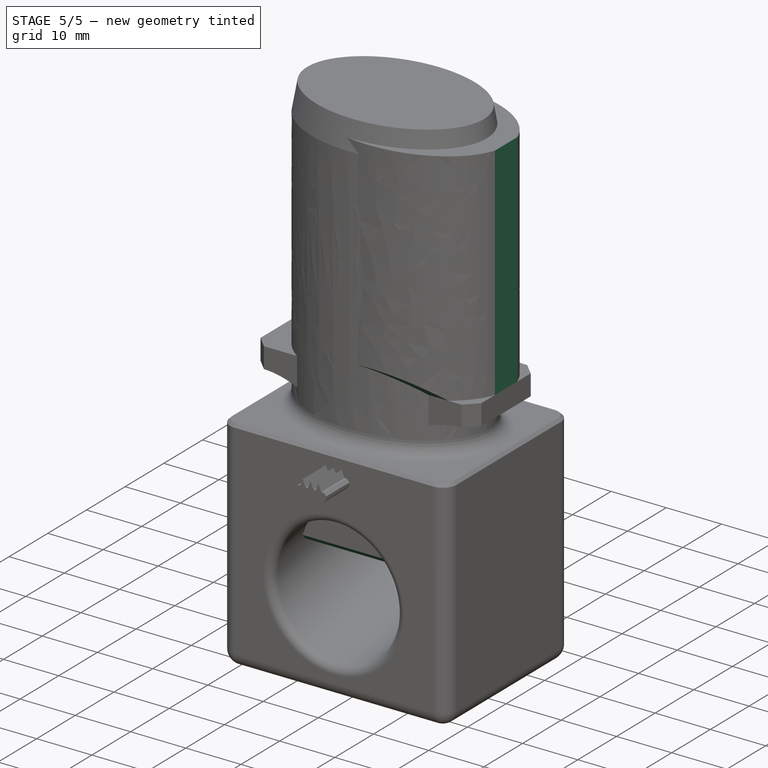
[diagram: stage 5 of 5 — iso view after this stage's code; geometry added in this stage tinted green]
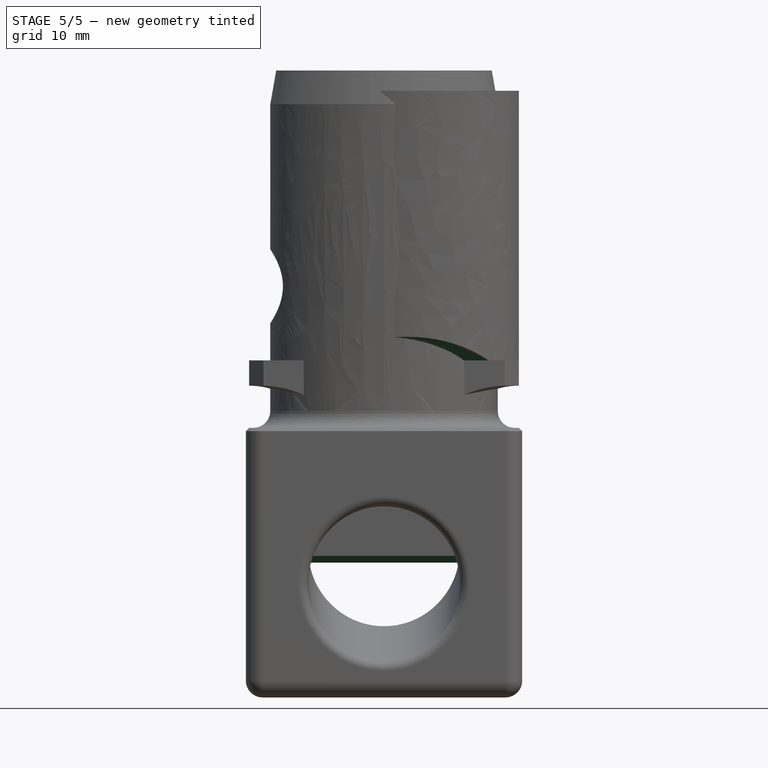
[diagram: stage 5 of 5 — front view after this stage's code; geometry added in this stage tinted green]
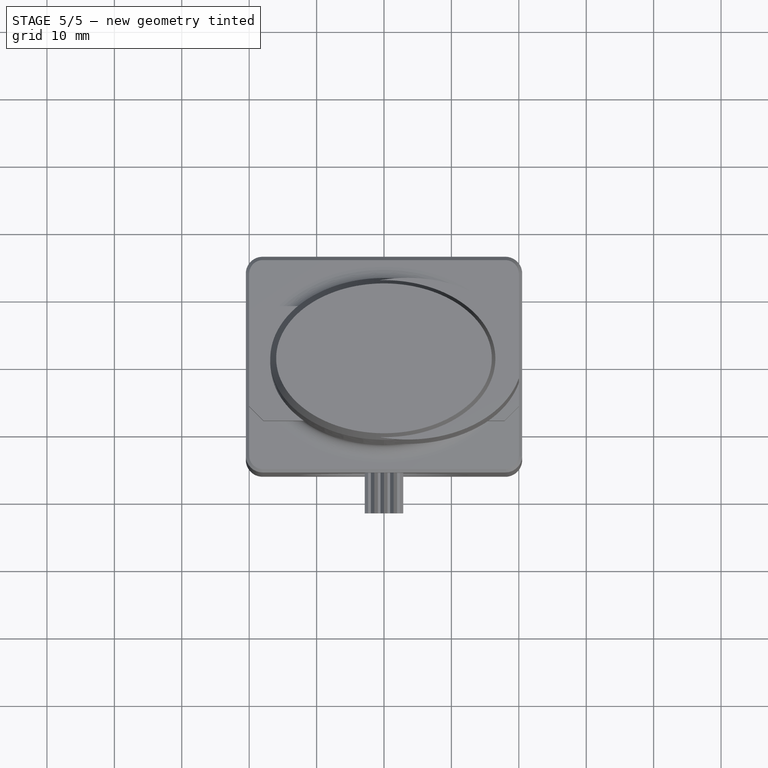
[diagram: stage 5 of 5 — top view after this stage's code; geometry added in this stage tinted green]
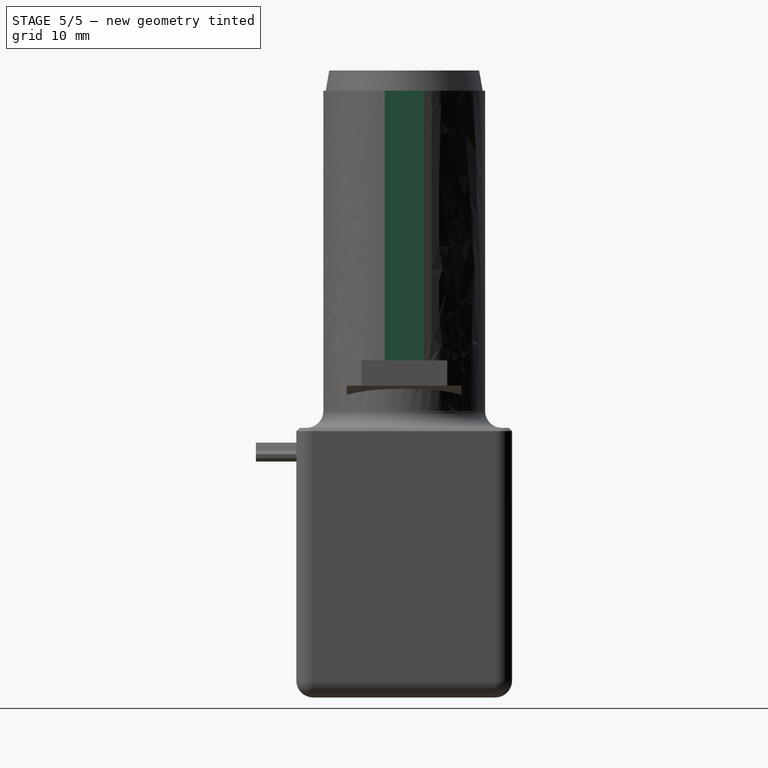
[diagram: stage 5 of 5 — right view after this stage's code; geometry added in this stage tinted green]
FEATURE [Sketcher::SketchObject] Sketch004
  ArcFitTolerance = 1e-06
  AttachmentSupport = -> [Pad001]
  ExternalBSplineMaxDegree = 5
  ExternalBSplineTolerance = 0.0001
  ExternalGeometry = -> [Pad001]
  FixShape = 1
  FullyConstrained = true
  InternalTolerance = 1e-06
  InvalidShape = false
  MakeInternals = false
  MapMode = 5
  Placement = pos=(0,0,15) rot=(0,0,1;0rad)
  Support = -> [Pad001]
  TreeRank = 21
  ValidateShape = false
  sketch-geometry (4):
    g0: LineSegment StartX=20 StartY=6.37868 StartZ=0 EndX=32.7574 EndY=6.37868 EndZ=0
    g1: LineSegment StartX=32.7574 StartY=6.37868 StartZ=0 EndX=32.7574 EndY=-6.37868 EndZ=0
    g2: LineSegment StartX=32.7574 StartY=-6.37868 StartZ=0 EndX=20 EndY=-6.37868 EndZ=0
    g3: LineSegment StartX=20 StartY=-6.37868 StartZ=0 EndX=20 EndY=6.37868 EndZ=0
  constraints (10):
    c: Coincident(g0,g1)
    c: Coincident(g1,g2)
    c: Coincident(g2,g3)
    c: Coincident(g3,g0)
    c: Horizontal(g0)
    c: Horizontal(g2)
    c: Vertical(g1)
    c: Coincident(g0,g-3)
    c: Coincident(g2,g-3)
    c: Equal(g2,g3)
FEATURE [PartDesign::Pocket] Pocket001
  AddSubType = 1
  AlongSketchNormal = false
  AutoTaperInnerAngle = true
  BaseFeature = -> Pad001
  CheckUpToFaceLimits = true
  ClaimChildren = false
  Direction = (0,0,-1)
  Fit = 0
  FitJoin = 0
  FixShape = 1
  InnerFit = 0
  InnerFitJoin = 0
  InvalidShape = false
  Length = 5
  Length2 = 10
  Linearize = true
  NewSolid = false
  Profile = -> Sketch004
  ReferenceAxis = -> Sketch004 [N_Axis]
  Refine = true
  Reversed = true
  Suppress = false
  TaperInnerAngle = 0
  TaperInnerAngleRev = 0
  TreeRank = 22
  Type = 1
  ValidateShape = false
  _ProfileBasedVersion = 1
  _Version = 1
FEATURE [Sketcher::SketchObject] Sketch005
  ArcFitTolerance = 1e-06
  AttachmentSupport = -> [XZ_Plane]
  ExternalBSplineMaxDegree = 5
  ExternalBSplineTolerance = 0.0001
  ExternalGeometry = -> [Pocket001]
  FixShape = 1
  FullyConstrained = true
  InternalTolerance = 1e-06
  InvalidShape = false
  MakeInternals = false
  MapMode = 5
  Placement = pos=(0,0,0) rot=(1,0,0;1.5708rad)
  Support = -> [XZ_Plane]
  TreeRank = 23
  ValidateShape = false
  sketch-geometry (4):
    g0: LineSegment StartX=-13.5999 StartY=39 StartZ=0 EndX=-7.59991 EndY=39 EndZ=0
    g1: LineSegment StartX=-7.59991 StartY=39 StartZ=0 EndX=-7.59991 EndY=31 EndZ=0
    g2: LineSegment StartX=-7.59991 StartY=31 StartZ=0 EndX=-13.5999 EndY=31 EndZ=0
    g3: LineSegment StartX=-13.5999 StartY=31 StartZ=0 EndX=-13.5999 EndY=39 EndZ=0
  constraints (12):
    c: Coincident(g0,g1)
    c: Coincident(g1,g2)
    c: Coincident(g2,g3)
    c: Coincident(g3,g0)
    c: Horizontal(g0)
    c: Horizontal(g2)
    c: Vertical(g1)
    c: Vertical(g3)
    c: DistanceX(g0,g0) = 6
    c: DistanceY(g3,g3) = 8
    c: DistanceY(g0,g-3) = 16
    c: DistanceX(g0,g-3) = 0.1
FEATURE [PartDesign::Pocket] Pocket002
  AddSubType = 1
  AlongSketchNormal = false
  AutoTaperInnerAngle = true
  BaseFeature = -> Pocket001
  CheckUpToFaceLimits = true
  ClaimChildren = false
  Direction = (0,1,-2e-16)
  Fit = 0
  FitJoin = 0
  FixShape = 1
  InnerFit = 0
  InnerFitJoin = 0
  InvalidShape = false
  Length = 5
  Length2 = 10
  Linearize = true
  Midplane = true
  NewSolid = false
  Profile = -> Sketch005
  ReferenceAxis = -> Sketch005 [N_Axis]
  Refine = true
  Suppress = false
  TaperInnerAngle = 0
  TaperInnerAngleRev = 0
  TreeRank = 24
  Type = 1
  ValidateShape = false
  _ProfileBasedVersion = 1
  _Version = 1
FEATURE [Sketcher::SketchObject] Sketch006
  ArcFitTolerance = 1e-06
  AttachmentSupport = -> [YZ_Plane]
  ExternalBSplineMaxDegree = 5
  ExternalBSplineTolerance = 0.0001
  ExternalGeometry = -> [Pocket002]
  FixShape = 1
  FullyConstrained = true
  InternalTolerance = 1e-06
  InvalidShape = false
  MakeInternals = false
  MapMode = 5
  Placement = pos=(0,0,0) rot=(0.57735,0.57735,0.57735;2.0944rad)
  Support = -> [YZ_Plane]
  TreeRank = 25
  ValidateShape = false
  sketch-geometry (3):
    g0: LineSegment StartX=-12.0992 StartY=18.5992 StartZ=0 EndX=-8.5 EndY=15 EndZ=0
    g1: LineSegment StartX=-8.5 StartY=15 StartZ=0 EndX=-12.0992 EndY=15 EndZ=0
    g2: LineSegment StartX=-12.0992 StartY=15 StartZ=0 EndX=-12.0992 EndY=18.5992 EndZ=0
  constraints (8):
    c: Coincident(g0,g-3)
    c: Coincident(g1,g0)
    c: Horizontal(g1)
    c: Coincident(g2,g1)
    c: Vertical(g2)
    c: Equal(g1,g2)
    c: DistanceX(g1,g-3) = 0.1
    c: Coincident(g0,g2)
FEATURE [PartDesign::Pocket] Pocket003
  AddSubType = 1
  AlongSketchNormal = false
  AutoTaperInnerAngle = true
  BaseFeature = -> Pocket002
  CheckUpToFaceLimits = true
  ClaimChildren = false
  Direction = (-1,2e-16,-3e-16)
  Fit = 0
  FitJoin = 0
  FixShape = 1
  InnerFit = 0
  InnerFitJoin = 0
  InvalidShape = false
  Length = 5
  Length2 = 10
  Linearize = true
  Midplane = true
  NewSolid = false
  Profile = -> Sketch006
  ReferenceAxis = -> Sketch006 [N_Axis]
  Refine = true
  Suppress = false
  TaperInnerAngle = 0
  TaperInnerAngleRev = 0
  TreeRank = 26
  Type = 1
  ValidateShape = false
  _ProfileBasedVersion = 1
  _Version = 1
FEATURE [PartDesign::Mirrored] Mirrored
  AddSubType = 0
  BaseFeature = -> Pocket003
  CopyShape = false
  FixShape = 1
  InvalidShape = false
  MirrorPlane = -> Sketch006 [V_Axis]
  NewSolid = false
  OriginalSubs = -> [Pocket003]
  Originals = -> [Pocket003]
  ParallelTransform = true
  Refine = true
  SubTransform = true
  Suppress = false
  TreeRank = 27
  ValidateShape = false
  _Version = 3
FEATURE [PartDesign::Chamfer] Chamfer
  AddSubType = 0
  Angle = 45
  Base = -> Mirrored [Face2]
  BaseFeature = -> Mirrored
  ChamferType = 0
  FixShape = 1
  FlipDirection = false
  InvalidShape = false
  NewSolid = false
  Refine = true
  Size = 1
  Size2 = 1
  SupportTransform = false
  Suppress = false
  TreeRank = 28
  UseAllEdges = false
  ValidateShape = false
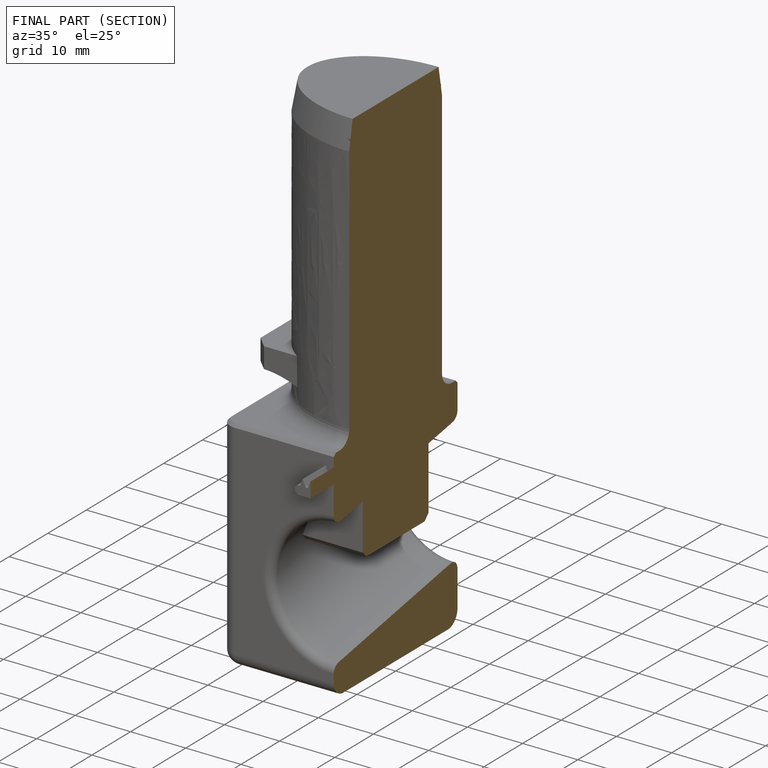
[diagram: finished part — half-section view (interior)]
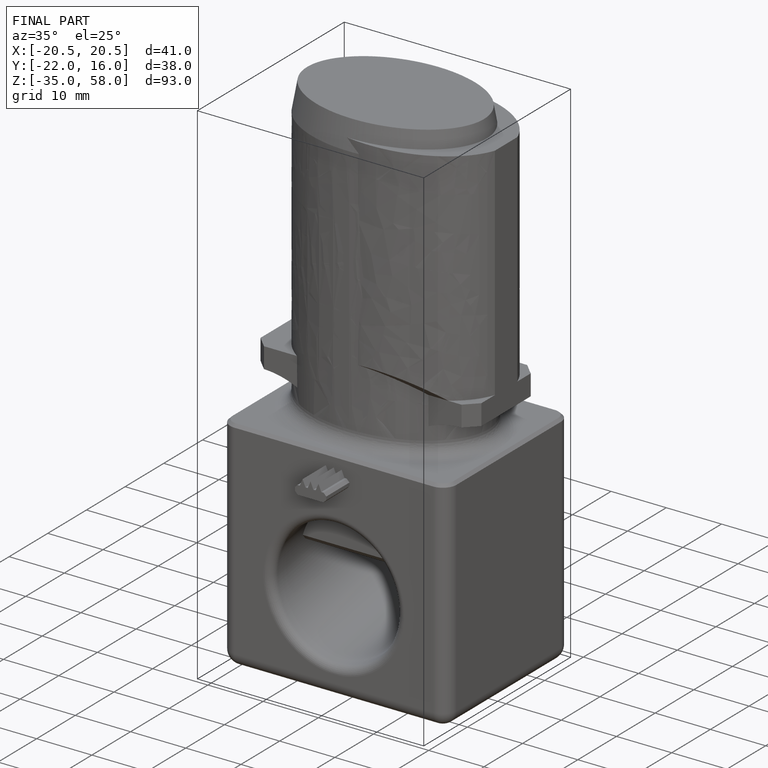
[diagram: finished part — iso view with bounding-box wireframe]
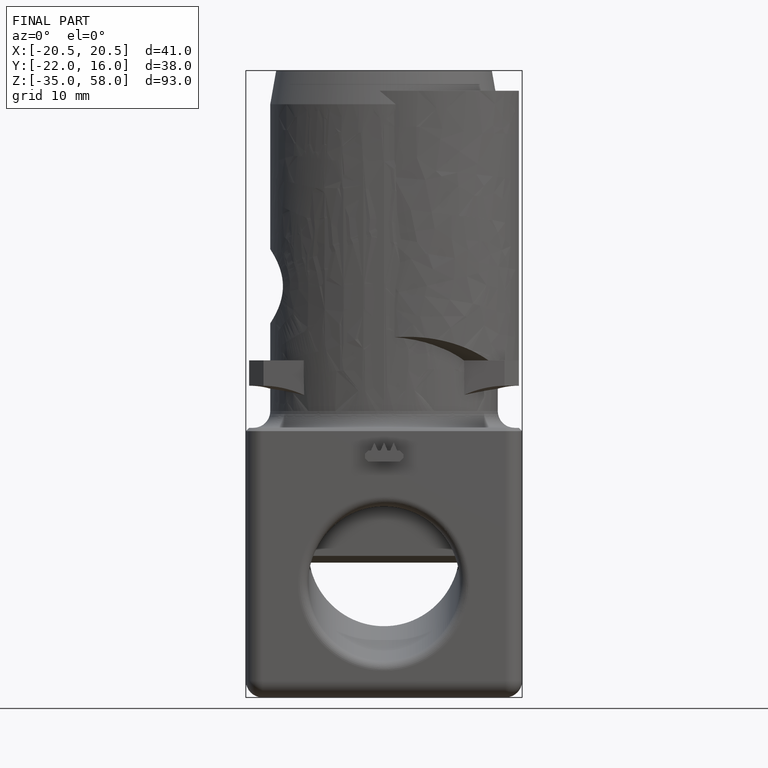
[diagram: finished part — front view with bounding-box wireframe]
